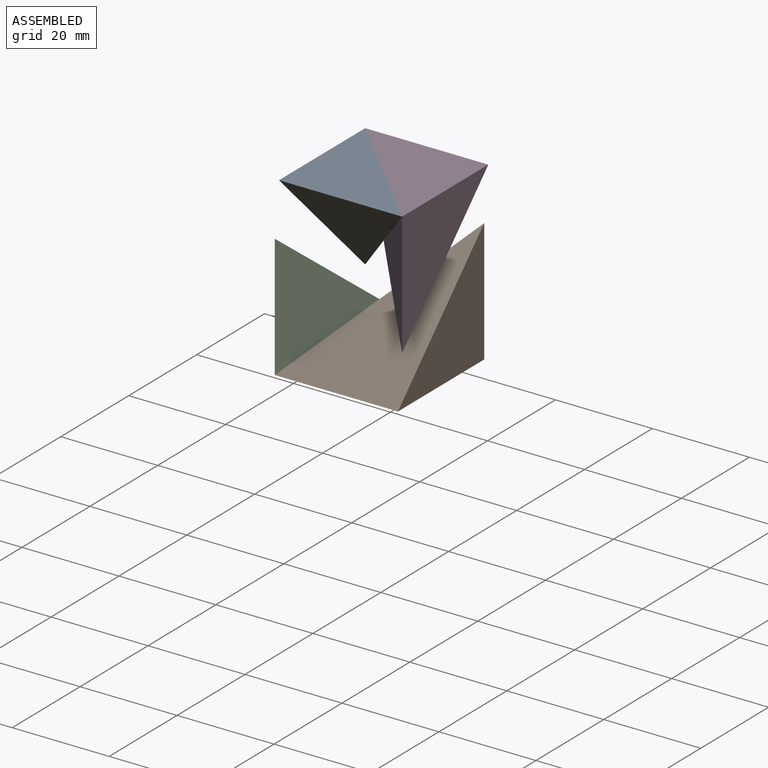
[diagram: assembled view]
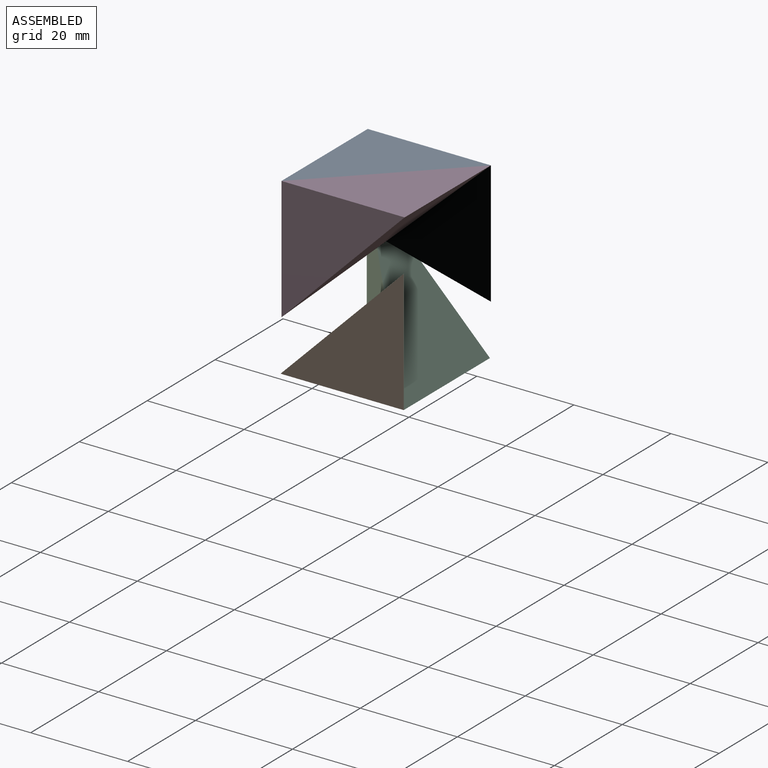
[diagram: assembled view, second angle]
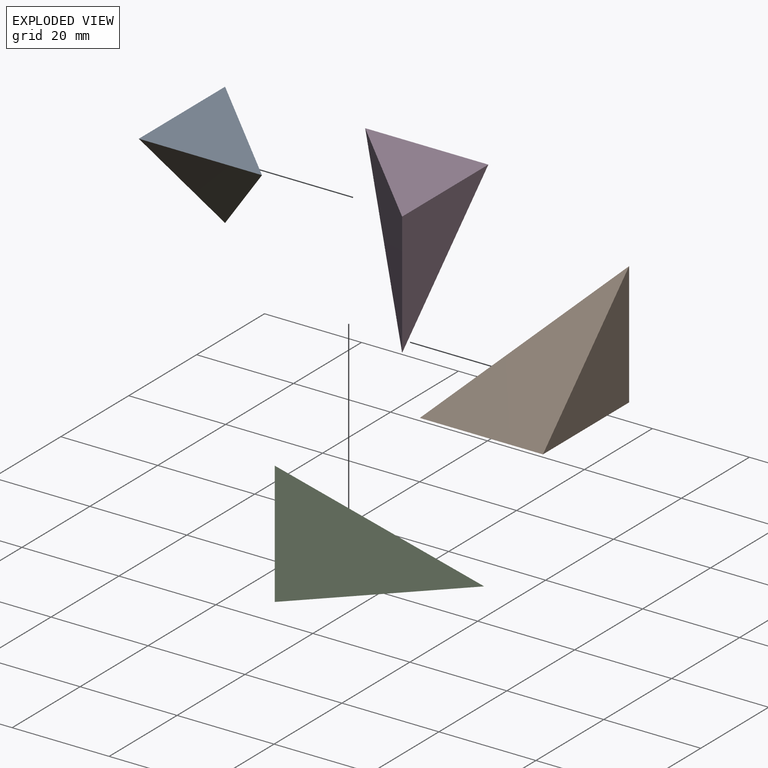
[diagram: exploded view]
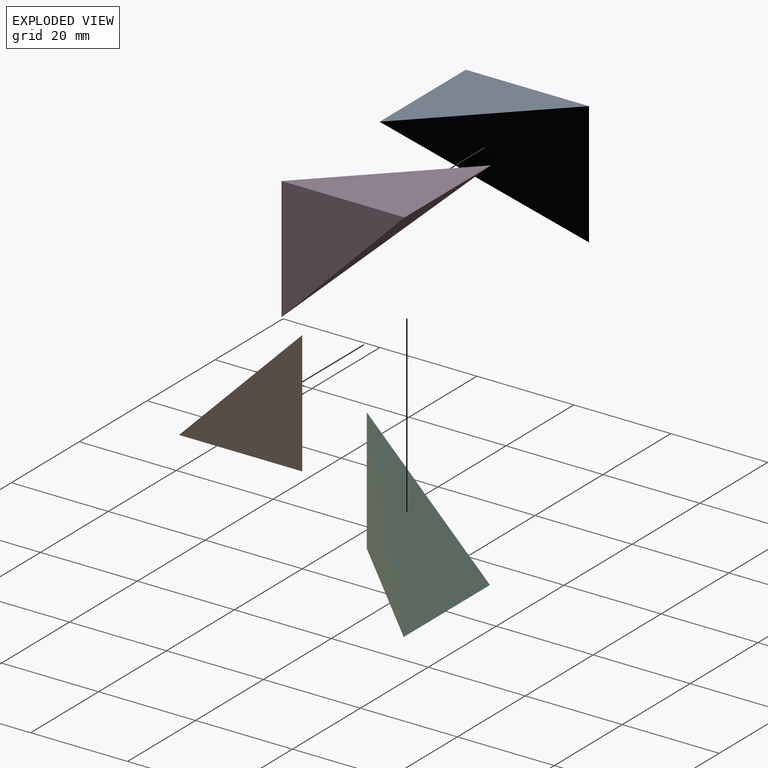
[diagram: exploded view, second angle]
ASSEMBLY  parts=4 mates=2
PART A: 4 faces, bbox 25.4x25.4x25.4 mm
  f0: plane 25.4x25.4mm, normal (-1,0,0), area 322.6mm2, adj f1,f2,f3
  f1: plane 25.4x25.4mm, normal (0,0,-1), area 322.6mm2, adj f0,f2,f3
  f2: plane 25.4x25.4mm, normal (0.71,-0.71,0), area 456.2mm2, adj f0,f1,f3
  f3: plane 25.4x25.4mm, normal (0,0.71,0.71), area 456.2mm2, adj f0,f1,f2
PART B: same geometry as A
PART C: same geometry as A
PART D: same geometry as A
PLACE A rot(axis=(1,0,0),180deg) t=(1.66,-1.52,19.9)mm
PLACE B rot(axis=(0,0,1),180deg) t=(1.18,-2.05,-16.35)mm
PLACE C t=(1.18,-2.05,-16.35)mm
PLACE D rot(axis=(0,-1,0),180deg) t=(1.66,-1.52,19.9)mm
MATE fastened A.f1 <-> D.f1  axis (0,0,1) through (-11.04,11.18,19.9)mm
MATE fastened B.f1 <-> C.f1  axis (0,0,1) through (-11.52,-14.75,-16.35)mm
